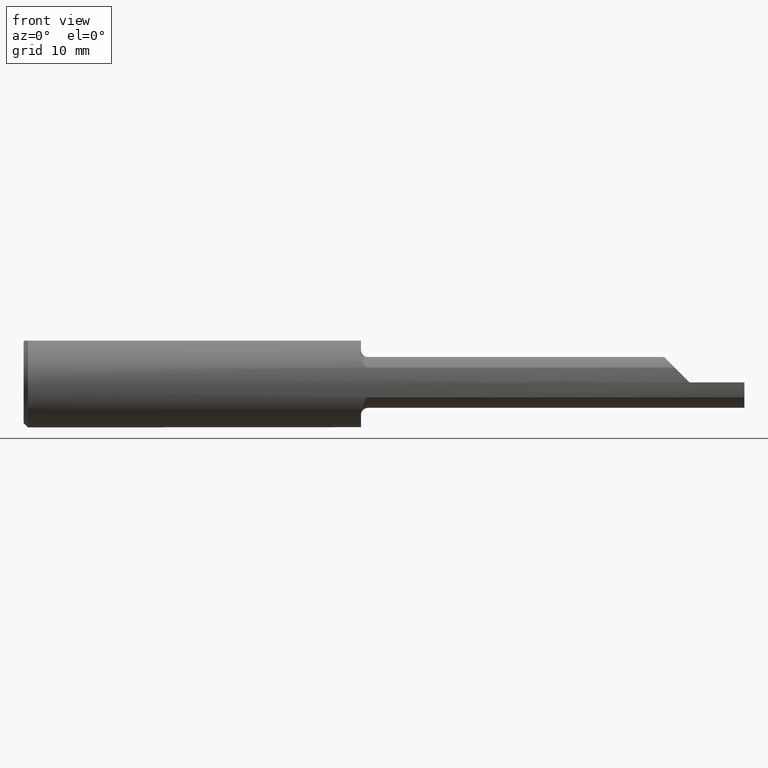
[diagram: clean part render]
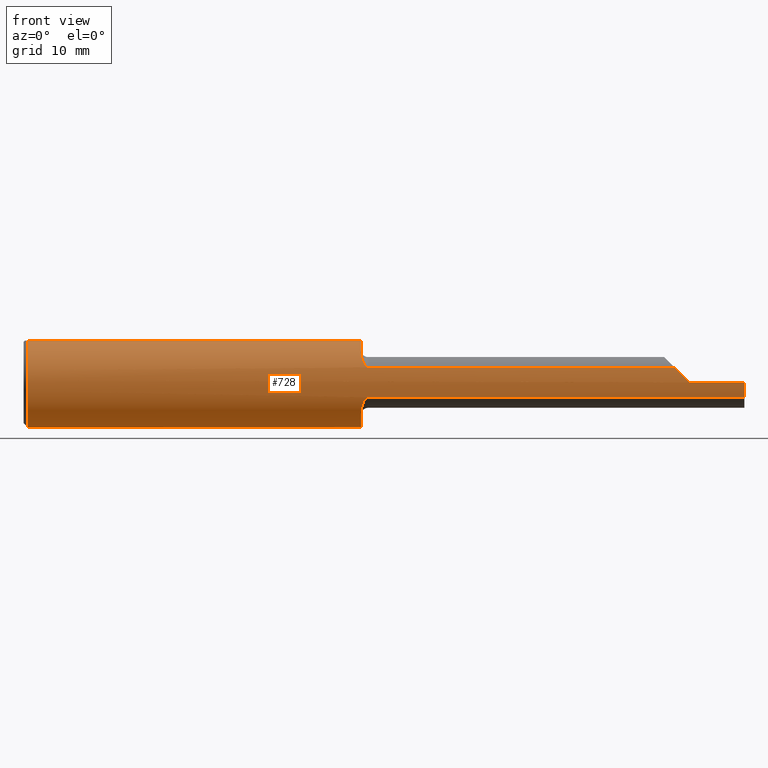
[diagram: same view with one face highlighted and labeled with its STEP entity id]
A machine part, front view. The second image highlights one B-rep face of the part: STEP entity #728.
In plain terms, the highlighted cylindrical surface (partial cylindrical patch) has radius 3.9649 mm, axis along (-1, -0, -0).
Its self-contained STEP definition (entity closure, byte-faithful):
#3 = AXIS2_PLACEMENT_3D ( 'NONE', #340, #856, #488 ) ;
#6 = CIRCLE ( 'NONE', #848, 0.1560999999999999888 ) ;
#9 = CARTESIAN_POINT ( 'NONE',  ( 1.170000000000000151, 0.000000000000000000, 0.000000000000000000 ) ) ;
#15 = FACE_OUTER_BOUND ( 'NONE', #171, .T. ) ;
#17 = CARTESIAN_POINT ( 'NONE',  ( 1.179094334707839531, -0.1408376601564307051, -0.06752940149352165689 ) ) ;
#18 = VERTEX_POINT ( 'NONE', #846 ) ;
#27 = CARTESIAN_POINT ( 'NONE',  ( 1.172184834623028138, -0.1292572780652835041, -0.08772123080144228480 ) ) ;
#28 = EDGE_CURVE ( 'NONE', #18, #610, #926, .T. ) ;
#29 = CARTESIAN_POINT ( 'NONE',  ( 1.172196435196732889, -0.1292912702572164008, 0.08767123446451229041 ) ) ;
#36 = B_SPLINE_CURVE_WITH_KNOTS ( 'NONE', 3,
 ( #932, #559, #241, #27, #777, #615, #17, #400, #318, #936, #335, #850, #632, #257 ),
 .UNSPECIFIED., .F., .F.,
 ( 4, 2, 2, 2, 2, 2, 4 ),
 ( 0.000000000000000000, 0.0004571115948190657011, 0.0009142231896381314022, 0.001371334784457197645, 0.001599890581866728057, 0.001714168480571489576, 0.001828446379276251529 ),
 .UNSPECIFIED. ) ;
#38 = EDGE_CURVE ( 'NONE', #609, #834, #938, .T. ) ;
#81 = CARTESIAN_POINT ( 'NONE',  ( 1.191958798426077548, -0.1470959791559693364, 0.05225519572836446330 ) ) ;
#86 = EDGE_CURVE ( 'NONE', #506, #609, #888, .T. ) ;
#94 = VERTEX_POINT ( 'NONE', #179 ) ;
#99 = DIRECTION ( 'NONE',  ( 0.000000000000000000, 0.000000000000000000, -1.000000000000000000 ) ) ;
#100 = EDGE_CURVE ( 'NONE', #546, #796, #462, .T. ) ;
#106 = CARTESIAN_POINT ( 'NONE',  ( 2.310000000000000053, 0.000000000000000000, 0.000000000000000000 ) ) ;
#115 = VERTEX_POINT ( 'NONE', #795 ) ;
#128 = CARTESIAN_POINT ( 'NONE',  ( 1.170000000000000151, -0.1142537450722733300, 0.1063639588251582974 ) ) ;
#138 = DIRECTION ( 'NONE',  ( 1.000000000000000000, 0.000000000000000000, 0.000000000000000000 ) ) ;
#140 = ORIENTED_EDGE ( 'NONE', *, *, #86, .F. ) ;
#150 = CARTESIAN_POINT ( 'NONE',  ( 0.01499999999999970281, 0.000000000000000000, -0.1560999999999999888 ) ) ;
#159 = VERTEX_POINT ( 'NONE', #571 ) ;
#160 = CARTESIAN_POINT ( 'NONE',  ( 1.193446355305318063, -0.1472695137976347268, 0.05175809410911755976 ) ) ;
#161 = DIRECTION ( 'NONE',  ( 1.000000000000000000, 0.000000000000000000, 0.000000000000000000 ) ) ;
#171 = EDGE_LOOP ( 'NONE', ( #536, #140, #373, #825, #222, #352, #677, #473, #885, #229, #616, #596, #187, #459 ) ) ;
#179 = CARTESIAN_POINT ( 'NONE',  ( 2.258341905890882462, -0.1472695137976346991, 0.05175809410911749731 ) ) ;
#180 = VECTOR ( 'NONE', #504, 39.37007874015748143 ) ;
#187 = ORIENTED_EDGE ( 'NONE', *, *, #100, .F. ) ;
#207 = DIRECTION ( 'NONE',  ( -1.000000000000000000, -0.000000000000000000, -0.000000000000000000 ) ) ;
#222 = ORIENTED_EDGE ( 'NONE', *, *, #738, .T. ) ;
#225 = DIRECTION ( 'NONE',  ( 1.000000000000000000, -0.000000000000000000, -0.000000000000000000 ) ) ;
#229 = ORIENTED_EDGE ( 'NONE', *, *, #886, .T. ) ;
#239 = CARTESIAN_POINT ( 'NONE',  ( 2.258341905890882462, -0.1472695137976346991, 0.05175809410911749731 ) ) ;
#241 = CARTESIAN_POINT ( 'NONE',  ( 1.170457377058164328, -0.1222208176751872349, -0.09728581599069097141 ) ) ;
#246 = DIRECTION ( 'NONE',  ( 0.000000000000000000, 0.000000000000000000, 1.000000000000000000 ) ) ;
#251 = CARTESIAN_POINT ( 'NONE',  ( 2.500000000000000000, 0.000000000000000000, 0.000000000000000000 ) ) ;
#257 = CARTESIAN_POINT ( 'NONE',  ( 1.195000000000000062, -0.1472695137976346991, -0.05175809410911754588 ) ) ;
#258 = CARTESIAN_POINT ( 'NONE',  ( 2.500000000000000000, 0.000000000000000000, 0.000000000000000000 ) ) ;
#264 = LINE ( 'NONE', #420, #479 ) ;
#268 = CARTESIAN_POINT ( 'NONE',  ( 1.170000000000000151, -0.1184005327550379932, 0.1019095738247443456 ) ) ;
#296 = LINE ( 'NONE', #664, #180 ) ;
#301 = CARTESIAN_POINT ( 'NONE',  ( 1.195000000000000062, -0.1472695137976346991, -0.05175809410911754588 ) ) ;
#318 = CARTESIAN_POINT ( 'NONE',  ( 1.185113571315069336, -0.1450112207500813266, -0.05782715517876008821 ) ) ;
#335 = CARTESIAN_POINT ( 'NONE',  ( 1.189351722746850415, -0.1465615025502166879, -0.05373597933534095955 ) ) ;
#339 = EDGE_CURVE ( 'NONE', #546, #834, #36, .T. ) ;
#340 = CARTESIAN_POINT ( 'NONE',  ( 1.170000000000000151, 0.000000000000000000, 0.000000000000000000 ) ) ;
#349 = EDGE_CURVE ( 'NONE', #746, #617, #847, .T. ) ;
#352 = ORIENTED_EDGE ( 'NONE', *, *, #412, .F. ) ;
#356 = AXIS2_PLACEMENT_3D ( 'NONE', #258, #493, #722 ) ;
#365 = CARTESIAN_POINT ( 'NONE',  ( 0.01499999999999970281, 0.05756040305626781983, 0.1450999999999999512 ) ) ;
#373 = ORIENTED_EDGE ( 'NONE', *, *, #619, .T. ) ;
#388 = CARTESIAN_POINT ( 'NONE',  ( 1.189346387196744459, -0.1465602152313723316, 0.05373951875293322272 ) ) ;
#394 = CARTESIAN_POINT ( 'NONE',  ( 1.179076693190785230, -0.1408182624999438359, 0.06756946090661447579 ) ) ;
#398 = CARTESIAN_POINT ( 'NONE',  ( 0.01499999999999970281, 0.000000000000000000, 0.000000000000000000 ) ) ;
#400 = CARTESIAN_POINT ( 'NONE',  ( 1.183463538880900723, -0.1440383527506708394, -0.06022646497160677459 ) ) ;
#402 = CARTESIAN_POINT ( 'NONE',  ( 1.170000000000000151, 0.05756040305626781289, 0.1450999999999999512 ) ) ;
#406 = DIRECTION ( 'NONE',  ( -1.000000000000000000, -0.000000000000000000, -0.000000000000000000 ) ) ;
#407 = DIRECTION ( 'NONE',  ( -1.000000000000000000, -0.000000000000000000, -0.000000000000000000 ) ) ;
#410 = CARTESIAN_POINT ( 'NONE',  ( 1.796000000000000263, -0.1472695137976346991, -0.05175809410911754588 ) ) ;
#412 = EDGE_CURVE ( 'NONE', #18, #94, #264, .T. ) ;
#420 = CARTESIAN_POINT ( 'NONE',  ( 1.796000000000000263, -0.1472695137976346991, 0.05175809410911754588 ) ) ;
#440 = CARTESIAN_POINT ( 'NONE',  ( 1.170000000000000151, -0.1142537450722733300, -0.1063639588251582974 ) ) ;
#445 = AXIS2_PLACEMENT_3D ( 'NONE', #106, #622, #246 ) ;
#459 = ORIENTED_EDGE ( 'NONE', *, *, #339, .T. ) ;
#462 = CIRCLE ( 'NONE', #3, 0.1560999999999999888 ) ;
#467 = VECTOR ( 'NONE', #138, 39.37007874015748143 ) ;
#473 = ORIENTED_EDGE ( 'NONE', *, *, #773, .F. ) ;
#476 = DIRECTION ( 'NONE',  ( 0.000000000000000000, 0.000000000000000000, 1.000000000000000000 ) ) ;
#479 = VECTOR ( 'NONE', #732, 39.37007874015748143 ) ;
#488 = DIRECTION ( 'NONE',  ( 0.000000000000000000, 0.000000000000000000, -1.000000000000000000 ) ) ;
#493 = DIRECTION ( 'NONE',  ( 1.000000000000000000, 0.000000000000000000, 0.000000000000000000 ) ) ;
#504 = DIRECTION ( 'NONE',  ( -1.000000000000000000, -0.000000000000000000, -0.000000000000000000 ) ) ;
#506 = VERTEX_POINT ( 'NONE', #724 ) ;
#536 = ORIENTED_EDGE ( 'NONE', *, *, #38, .F. ) ;
#542 = CYLINDRICAL_SURFACE ( 'NONE', #735, 0.1560999999999999888 ) ;
#546 = VERTEX_POINT ( 'NONE', #440 ) ;
#559 = CARTESIAN_POINT ( 'NONE',  ( 1.170000000000000373, -0.1184007186031942604, -0.1019093741908824180 ) ) ;
#568 = CARTESIAN_POINT ( 'NONE',  ( 1.173462723249350192, -0.1324931889103355687, 0.08274432694253379406 ) ) ;
#571 = CARTESIAN_POINT ( 'NONE',  ( 0.01499999999999970975, -0.05756040305626781983, 0.1450999999999999512 ) ) ;
#583 = LINE ( 'NONE', #756, #733 ) ;
#584 = LINE ( 'NONE', #737, #467 ) ;
#596 = ORIENTED_EDGE ( 'NONE', *, *, #937, .T. ) ;
#606 = CARTESIAN_POINT ( 'NONE',  ( 2.310000000000000053, -0.1560999679692471886, 9.999999999973052634E-05 ) ) ;
#609 = VERTEX_POINT ( 'NONE', #675 ) ;
#610 = VERTEX_POINT ( 'NONE', #128 ) ;
#615 = CARTESIAN_POINT ( 'NONE',  ( 1.176938296605558376, -0.1382834154682844041, -0.07265524724002504764 ) ) ;
#616 = ORIENTED_EDGE ( 'NONE', *, *, #791, .T. ) ;
#617 = VERTEX_POINT ( 'NONE', #667 ) ;
#619 = EDGE_CURVE ( 'NONE', #506, #746, #583, .T. ) ;
#622 = DIRECTION ( 'NONE',  ( -1.000000000000000000, -0.000000000000000000, -0.000000000000000000 ) ) ;
#630 = DIRECTION ( 'NONE',  ( 0.000000000000000000, 0.000000000000000000, -1.000000000000000000 ) ) ;
#632 = CARTESIAN_POINT ( 'NONE',  ( 1.193455704562869535, -0.1472695137976399726, -0.05175809410911987735 ) ) ;
#664 = CARTESIAN_POINT ( 'NONE',  ( 2.500000000000000000, -0.05756040305626781983, 0.1450999999999999512 ) ) ;
#667 = CARTESIAN_POINT ( 'NONE',  ( 2.310000000000000053, -0.1560999679692471886, 9.999999999973052634E-05 ) ) ;
#673 = AXIS2_PLACEMENT_3D ( 'NONE', #398, #780, #99 ) ;
#675 = CARTESIAN_POINT ( 'NONE',  ( 2.500000000000000000, -0.1472695137976346991, -0.05175809410911760139 ) ) ;
#677 = ORIENTED_EDGE ( 'NONE', *, *, #28, .T. ) ;
#689 =( BOUNDED_CURVE ( )  B_SPLINE_CURVE ( 3, ( #606, #783, #853, #239 ),
 .UNSPECIFIED., .F., .F. ) 
 B_SPLINE_CURVE_WITH_KNOTS ( ( 4, 4 ),
 ( 4.713029595418895212, 5.050356325447889816 ),
 .UNSPECIFIED. ) 
 CURVE ( )  GEOMETRIC_REPRESENTATION_ITEM ( )  RATIONAL_B_SPLINE_CURVE ( ( 1.000000000000000000, 0.9905400143130563828, 0.9905400143130563828, 1.000000000000000000 ) ) 
 REPRESENTATION_ITEM ( '' )  );
#693 = CARTESIAN_POINT ( 'NONE',  ( 1.188188893766194631, -0.1461994758887455448, 0.05471906550179904405 ) ) ;
#700 = CARTESIAN_POINT ( 'NONE',  ( 1.176940211988512619, -0.1382857370966605048, 0.07265069624192241338 ) ) ;
#722 = DIRECTION ( 'NONE',  ( 0.000000000000000000, 0.000000000000000000, -1.000000000000000000 ) ) ;
#724 = CARTESIAN_POINT ( 'NONE',  ( 2.500000000000000000, -0.1560999999999999333, -3.979970649922725226E-17 ) ) ;
#728 = ADVANCED_FACE ( 'NONE', ( #15 ), #542, .T. ) ;
#732 = DIRECTION ( 'NONE',  ( 1.000000000000000000, 0.000000000000000000, 0.000000000000000000 ) ) ;
#733 = VECTOR ( 'NONE', #207, 39.37007874015748143 ) ;
#735 = AXIS2_PLACEMENT_3D ( 'NONE', #251, #407, #476 ) ;
#737 = CARTESIAN_POINT ( 'NONE',  ( 2.500000000000000000, 0.05756040305626781983, 0.1450999999999999512 ) ) ;
#738 = EDGE_CURVE ( 'NONE', #617, #94, #689, .T. ) ;
#746 = VERTEX_POINT ( 'NONE', #763 ) ;
#756 = CARTESIAN_POINT ( 'NONE',  ( 2.500000000000000000, -0.1560999999999999888, -3.979970649922725226E-17 ) ) ;
#762 = CARTESIAN_POINT ( 'NONE',  ( 1.195000000000000062, -0.1472695137976346991, 0.05175809410911754588 ) ) ;
#763 = CARTESIAN_POINT ( 'NONE',  ( 2.310000000000000053, -0.1560999999999999888, -3.979970649922725226E-17 ) ) ;
#768 = CARTESIAN_POINT ( 'NONE',  ( 1.183431866506538643, -0.1440183431193643171, 0.06027419116281401701 ) ) ;
#770 = AXIS2_PLACEMENT_3D ( 'NONE', #971, #225, #832 ) ;
#773 = EDGE_CURVE ( 'NONE', #115, #610, #6, .T. ) ;
#777 = CARTESIAN_POINT ( 'NONE',  ( 1.173460603892426679, -0.1324887887535367847, -0.08275148820235224412 ) ) ;
#780 = DIRECTION ( 'NONE',  ( 1.000000000000000000, -0.000000000000000000, -0.000000000000000000 ) ) ;
#783 = CARTESIAN_POINT ( 'NONE',  ( 2.292364034161542108, -0.1560886701028428303, 0.01773596583845823624 ) ) ;
#791 = EDGE_CURVE ( 'NONE', #892, #911, #891, .T. ) ;
#795 = CARTESIAN_POINT ( 'NONE',  ( 1.170000000000000151, -0.05756040305626783371, 0.1450999999999999512 ) ) ;
#796 = VERTEX_POINT ( 'NONE', #402 ) ;
#825 = ORIENTED_EDGE ( 'NONE', *, *, #349, .T. ) ;
#832 = DIRECTION ( 'NONE',  ( 0.000000000000000000, 0.000000000000000000, -1.000000000000000000 ) ) ;
#834 = VERTEX_POINT ( 'NONE', #301 ) ;
#846 = CARTESIAN_POINT ( 'NONE',  ( 1.195000000000000062, -0.1472695137976346991, 0.05175809410911754588 ) ) ;
#847 = CIRCLE ( 'NONE', #445, 0.1560999999999999888 ) ;
#848 = AXIS2_PLACEMENT_3D ( 'NONE', #9, #161, #630 ) ;
#850 = CARTESIAN_POINT ( 'NONE',  ( 1.191959507545617525, -0.1470959310543897836, -0.05225530185682182582 ) ) ;
#853 = CARTESIAN_POINT ( 'NONE',  ( 2.274980218814131927, -0.1531170741235404198, 0.03511978118586850384 ) ) ;
#856 = DIRECTION ( 'NONE',  ( 1.000000000000000000, 0.000000000000000000, 0.000000000000000000 ) ) ;
#860 = CARTESIAN_POINT ( 'NONE',  ( 1.170462901579272241, -0.1222564506482442526, 0.09724113425988749337 ) ) ;
#863 = EDGE_CURVE ( 'NONE', #115, #159, #296, .T. ) ;
#868 = CARTESIAN_POINT ( 'NONE',  ( 1.170000000000000151, -0.1142537450722733300, 0.1063639588251582974 ) ) ;
#885 = ORIENTED_EDGE ( 'NONE', *, *, #863, .T. ) ;
#886 = EDGE_CURVE ( 'NONE', #159, #892, #973, .T. ) ;
#888 = CIRCLE ( 'NONE', #356, 0.1560999999999999888 ) ;
#891 = CIRCLE ( 'NONE', #673, 0.1560999999999999888 ) ;
#892 = VERTEX_POINT ( 'NONE', #150 ) ;
#906 = VECTOR ( 'NONE', #406, 39.37007874015748143 ) ;
#911 = VERTEX_POINT ( 'NONE', #365 ) ;
#919 = CARTESIAN_POINT ( 'NONE',  ( 1.185093509039024218, -0.1449998908706356671, 0.05785545061298553310 ) ) ;
#926 = B_SPLINE_CURVE_WITH_KNOTS ( 'NONE', 3,
 ( #762, #160, #81, #388, #693, #919, #768, #394, #700, #568, #29, #860, #268, #868 ),
 .UNSPECIFIED., .F., .F.,
 ( 4, 2, 2, 2, 2, 2, 4 ),
 ( 0.000000000000000000, 0.0001161074790415160139, 0.0002322149580830320278, 0.0004644299161660636220, 0.0009288598323321264850, 0.001393289748498189240, 0.001857719664664252103 ),
 .UNSPECIFIED. ) ;
#932 = CARTESIAN_POINT ( 'NONE',  ( 1.170000000000000151, -0.1142537450722733300, -0.1063639588251582974 ) ) ;
#936 = CARTESIAN_POINT ( 'NONE',  ( 1.188224949848629697, -0.1462116317861901771, -0.05468660471535829320 ) ) ;
#937 = EDGE_CURVE ( 'NONE', #911, #796, #584, .T. ) ;
#938 = LINE ( 'NONE', #410, #906 ) ;
#971 = CARTESIAN_POINT ( 'NONE',  ( 0.01499999999999970281, 0.000000000000000000, 0.000000000000000000 ) ) ;
#973 = CIRCLE ( 'NONE', #770, 0.1560999999999999888 ) ;